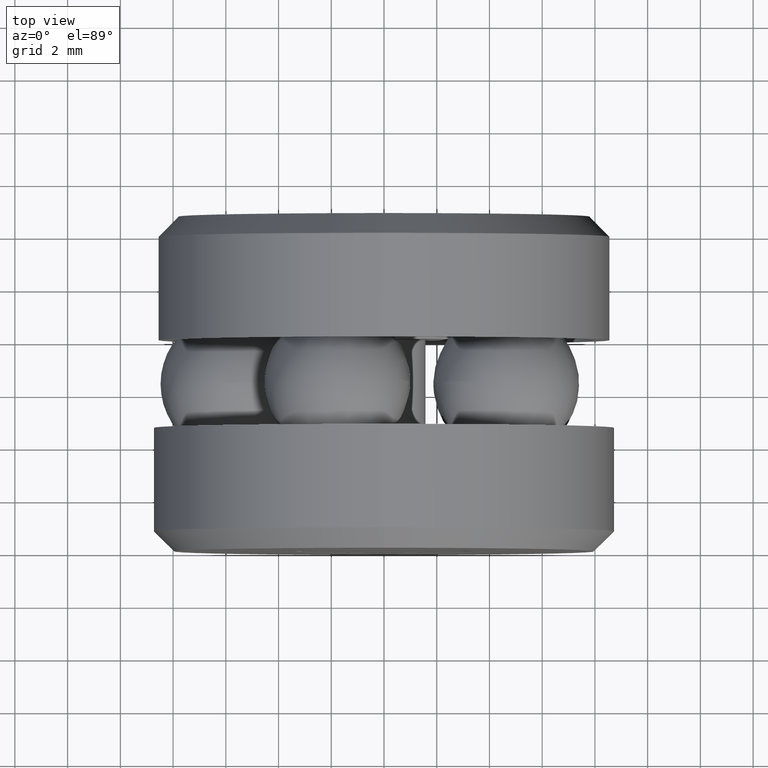
[diagram: clean part render]
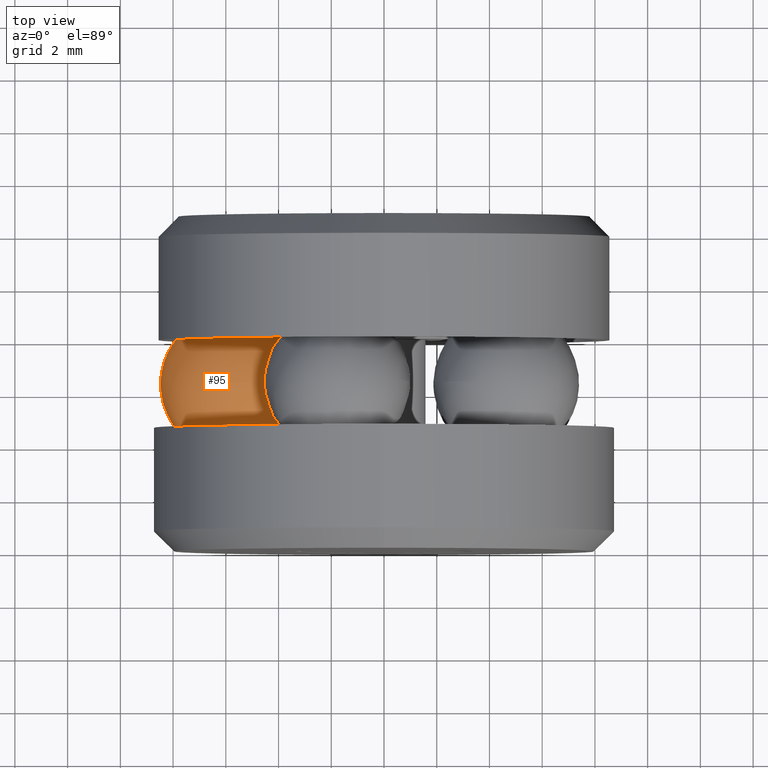
[diagram: same view with one face highlighted and labeled with its STEP entity id]
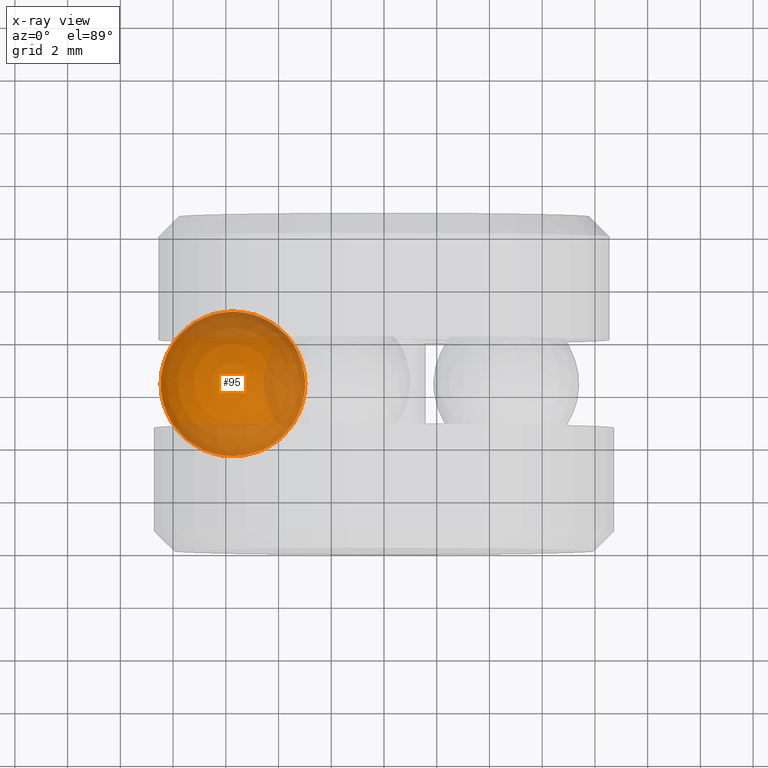
[diagram: x-ray of the same camera — body ghosted, the highlighted face saturated]
A machine part, top view. The second image highlights one B-rep face of the part: STEP entity #95.
The next image is the same camera in x-ray: the body ghosted, the highlighted face saturated — about 44% of this face is hidden behind the body in this view.
In plain terms, the highlighted spherical surface has radius 2.7686 mm.
Its self-contained STEP definition (entity closure, byte-faithful):
#21 = AXIS2_PLACEMENT_3D ( 'NONE', #256, #310, #164 ) ;
#95 = ADVANCED_FACE ( 'NONE', ( ), #234, .T. ) ;
#164 = DIRECTION ( 'NONE',  ( 1.000000000000000000, 0.0000000000000000000, 0.0000000000000000000 ) ) ;
#234 = SPHERICAL_SURFACE ( 'NONE', #21, 0.1090000000000000400 ) ;
#256 = CARTESIAN_POINT ( 'NONE',  ( -0.2257499999999999800, 0.2500000000000000000, 0.0000000000000000000 ) ) ;
#310 = DIRECTION ( 'NONE',  ( 0.0000000000000000000, 0.0000000000000000000, -1.000000000000000000 ) ) ;